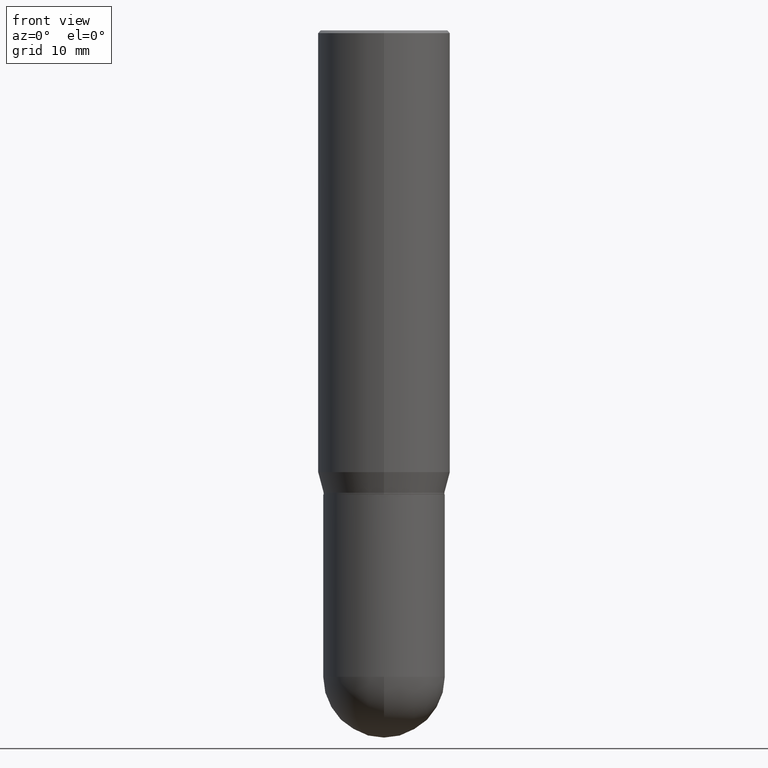
[diagram: clean part render]
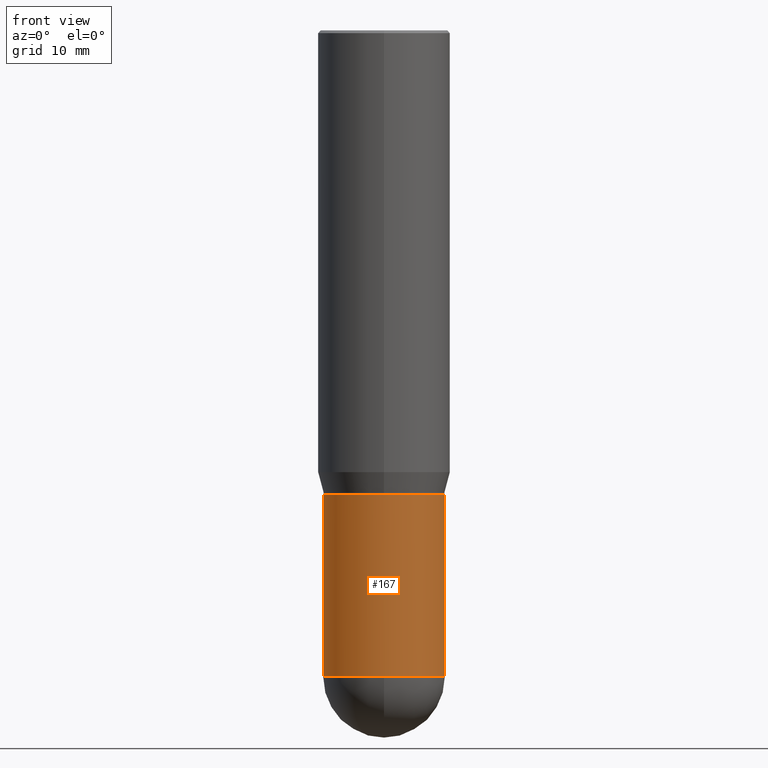
[diagram: same view with one face highlighted and labeled with its STEP entity id]
A machine part, front view. The second image highlights one B-rep face of the part: STEP entity #167.
In plain terms, the highlighted cylindrical surface (partial cylindrical patch) has radius 8.7313 mm, axis along (-0, 0, 1).
Its self-contained STEP definition (entity closure, byte-faithful):
#6 = CYLINDRICAL_SURFACE ( 'NONE', #101, 0.3437500000000001110 ) ;
#26 = CARTESIAN_POINT ( 'NONE',  ( 0.3437500000000001665, -1.336582700025891149E-14, -3.656250000000000000 ) ) ;
#41 = DIRECTION ( 'NONE',  ( 1.000000000000000000, -6.982962677686265922E-15, 0.000000000000000000 ) ) ;
#43 = FACE_OUTER_BOUND ( 'NONE', #401, .T. ) ;
#63 = VERTEX_POINT ( 'NONE', #352 ) ;
#75 = DIRECTION ( 'NONE',  ( 1.000000000000000000, -6.982962677686265922E-15, 0.000000000000000000 ) ) ;
#80 = ORIENTED_EDGE ( 'NONE', *, *, #392, .F. ) ;
#91 = DIRECTION ( 'NONE',  ( -2.445468806185136597E-29, 3.491481338843145583E-15, 1.000000000000000000 ) ) ;
#101 = AXIS2_PLACEMENT_3D ( 'NONE', #319, #433, #323 ) ;
#102 = CIRCLE ( 'NONE', #142, 0.3437500000000001665 ) ;
#126 = ORIENTED_EDGE ( 'NONE', *, *, #482, .T. ) ;
#139 = CARTESIAN_POINT ( 'NONE',  ( -0.3437500000000001110, -8.522942925628910551E-15, -2.625000000000000444 ) ) ;
#142 = AXIS2_PLACEMENT_3D ( 'NONE', #270, #189, #41 ) ;
#144 = LINE ( 'NONE', #462, #361 ) ;
#151 = EDGE_CURVE ( 'NONE', #314, #385, #261, .T. ) ;
#167 = ADVANCED_FACE ( 'NONE', ( #43 ), #6, .T. ) ;
#168 = CARTESIAN_POINT ( 'NONE',  ( -0.3437500000000001665, -8.522942925628910551E-15, -3.656250000000000000 ) ) ;
#189 = DIRECTION ( 'NONE',  ( -2.445468806185136597E-29, 3.491481338843145583E-15, 1.000000000000000000 ) ) ;
#198 = ORIENTED_EDGE ( 'NONE', *, *, #491, .T. ) ;
#200 = VERTEX_POINT ( 'NONE', #168 ) ;
#261 = CIRCLE ( 'NONE', #449, 0.3437500000000001665 ) ;
#265 = CARTESIAN_POINT ( 'NONE',  ( -2.442490654175256037E-15, -0.3437500000000129896, -3.656249999999999112 ) ) ;
#270 = CARTESIAN_POINT ( 'NONE',  ( 8.941245322614405682E-29, -1.276572864514525169E-14, -3.656250000000000000 ) ) ;
#273 = DIRECTION ( 'NONE',  ( -2.445468806185136877E-29, 3.491481338843145188E-15, 1.000000000000000000 ) ) ;
#277 = CARTESIAN_POINT ( 'NONE',  ( 0.3437500000000001110, -2.400393420454654971E-15, 1.676185766679853419E-29 ) ) ;
#279 = DIRECTION ( 'NONE',  ( -2.445468806185136597E-29, 3.491481338843145583E-15, 1.000000000000000000 ) ) ;
#295 = VECTOR ( 'NONE', #273, 39.37007874015748143 ) ;
#298 = EDGE_CURVE ( 'NONE', #311, #63, #455, .T. ) ;
#311 = VERTEX_POINT ( 'NONE', #139 ) ;
#313 = CARTESIAN_POINT ( 'NONE',  ( 8.941245322614405682E-29, -1.276572864514525169E-14, -3.656250000000000000 ) ) ;
#314 = VERTEX_POINT ( 'NONE', #265 ) ;
#319 = CARTESIAN_POINT ( 'NONE',  ( 0.000000000000000000, 0.000000000000000000, 0.000000000000000000 ) ) ;
#323 = DIRECTION ( 'NONE',  ( 1.000000000000000000, -6.982962677686266711E-15, 4.876176775795935793E-29 ) ) ;
#346 = DIRECTION ( 'NONE',  ( -2.445468806185136877E-29, 3.491481338843145188E-15, 1.000000000000000000 ) ) ;
#352 = CARTESIAN_POINT ( 'NONE',  ( 0.3437500000000001110, -1.156553193491791316E-14, -2.625000000000000444 ) ) ;
#361 = VECTOR ( 'NONE', #346, 39.37007874015748143 ) ;
#385 = VERTEX_POINT ( 'NONE', #26 ) ;
#392 = EDGE_CURVE ( 'NONE', #200, #311, #144, .T. ) ;
#401 = EDGE_LOOP ( 'NONE', ( #80, #198, #404, #126, #443 ) ) ;
#404 = ORIENTED_EDGE ( 'NONE', *, *, #151, .T. ) ;
#406 = DIRECTION ( 'NONE',  ( 1.000000000000000000, -6.982962677686266711E-15, 0.000000000000000000 ) ) ;
#433 = DIRECTION ( 'NONE',  ( -2.445468806185136597E-29, 3.491481338843145583E-15, 1.000000000000000000 ) ) ;
#443 = ORIENTED_EDGE ( 'NONE', *, *, #298, .F. ) ;
#445 = CARTESIAN_POINT ( 'NONE',  ( 6.419355616235984688E-29, -9.165138514463258190E-15, -2.625000000000000444 ) ) ;
#449 = AXIS2_PLACEMENT_3D ( 'NONE', #313, #279, #75 ) ;
#455 = CIRCLE ( 'NONE', #470, 0.3437500000000001110 ) ;
#462 = CARTESIAN_POINT ( 'NONE',  ( -0.3437500000000001110, 2.442490654175345178E-15, -1.690883937275124476E-29 ) ) ;
#467 = LINE ( 'NONE', #277, #295 ) ;
#470 = AXIS2_PLACEMENT_3D ( 'NONE', #445, #91, #406 ) ;
#482 = EDGE_CURVE ( 'NONE', #385, #63, #467, .T. ) ;
#491 = EDGE_CURVE ( 'NONE', #200, #314, #102, .T. ) ;